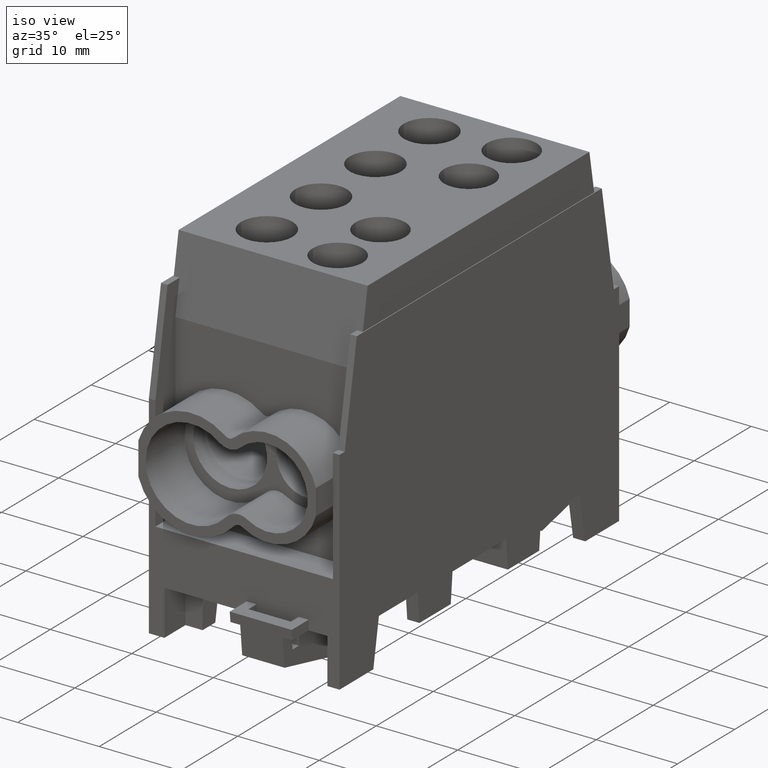
[diagram: clean part render]
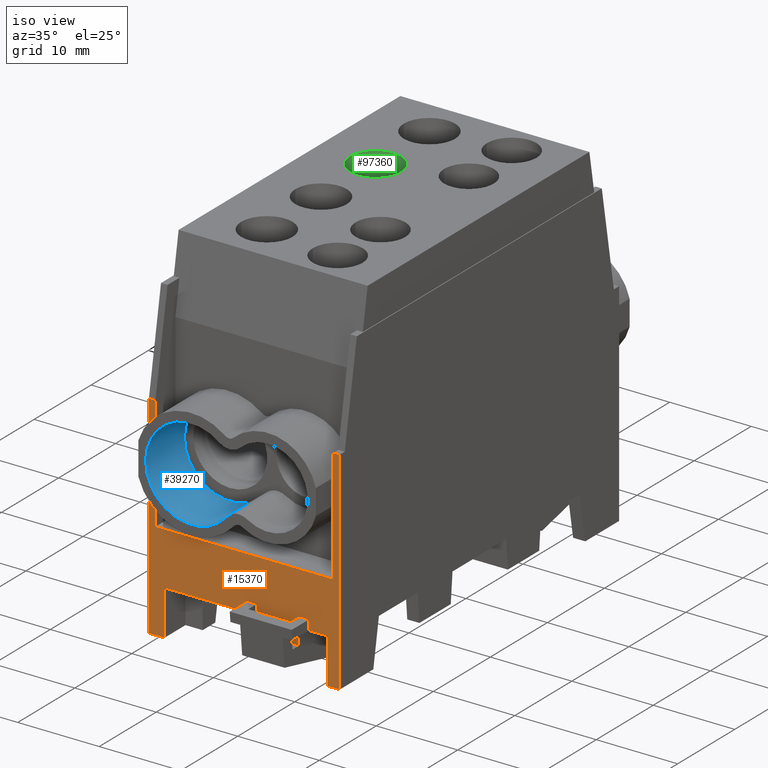
[diagram: same view with three faces highlighted in distinct colors, each labeled with its STEP entity id]
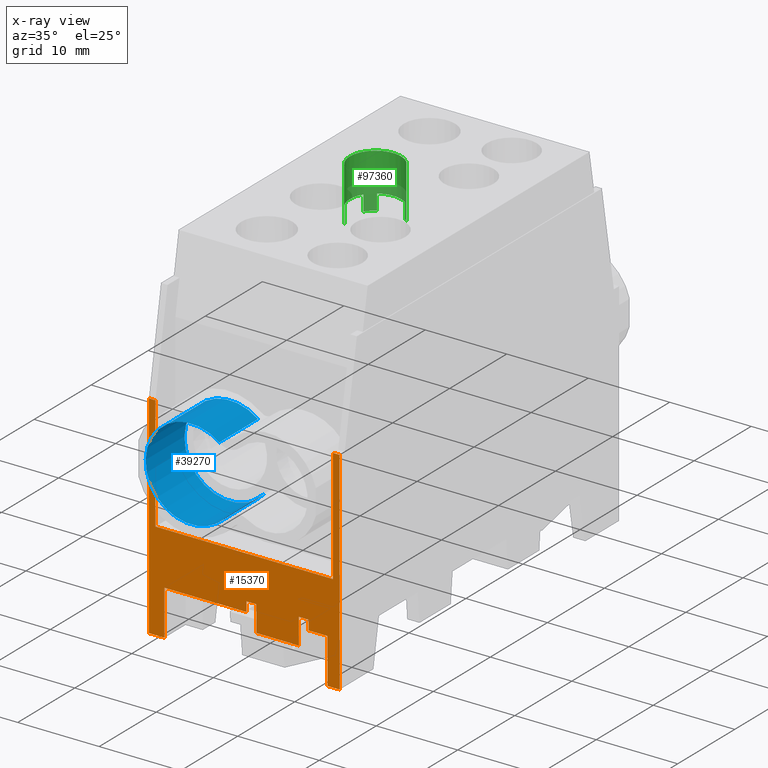
[diagram: x-ray of the same camera — body ghosted, the three highlighted faces saturated]
A machine part, iso view with three faces highlighted in distinct colors.
The next image is the same camera in x-ray (body ghosted, the three faces saturated) — at least one of them is partly hidden behind the body in this view.
Their STEP definitions:

[orange] entity #15370 — the highlighted planar face has unit normal (0, 1, 0).
#100=CARTESIAN_POINT('',(-11.7,-24.5,12.5000000000001));
#110=VERTEX_POINT('',#100);
#160=CARTESIAN_POINT('',(-11.7,-24.5,0.));
#170=DIRECTION('',(0.,0.,-1.));
#180=VECTOR('',#170,1.);
#190=LINE('',#160,#180);
#200=CARTESIAN_POINT('',(-11.7,-24.5,-13.5484906061591));
#210=VERTEX_POINT('',#200);
#220=EDGE_CURVE('',#110,#210,#190,.T.);
#4150=CARTESIAN_POINT('',(-10.9,-24.5,12.5000000000001));
#4160=VERTEX_POINT('',#4150);
#4190=CARTESIAN_POINT('',(3.5527136788005E-15,-24.5,12.5000000000001));
#4200=DIRECTION('',(-1.,0.,0.));
#4210=VECTOR('',#4200,1.);
#4220=LINE('',#4190,#4210);
#4230=EDGE_CURVE('',#4160,#110,#4220,.T.);
#4560=CARTESIAN_POINT('',(0.300000000000004,-24.5,-6.8));
#4570=VERTEX_POINT('',#4560);
#4600=CARTESIAN_POINT('',(0.,-24.5,-6.8));
#4610=DIRECTION('',(1.,0.,0.));
#4620=VECTOR('',#4610,1.);
#4630=LINE('',#4600,#4620);
#4640=CARTESIAN_POINT('',(1.50000000000001,-24.5,-6.8));
#4650=VERTEX_POINT('',#4640);
#4660=EDGE_CURVE('',#4570,#4650,#4630,.T.);
#4880=CARTESIAN_POINT('',(6.70000000000001,-24.5,-6.8));
#4890=VERTEX_POINT('',#4880);
#4920=CARTESIAN_POINT('',(7.9,-24.5,-6.8));
#4930=VERTEX_POINT('',#4920);
#4940=EDGE_CURVE('',#4890,#4930,#4630,.T.);
#5700=CARTESIAN_POINT('',(10.9,-24.5,6.65080666151701));
#5710=VERTEX_POINT('',#5700);
#5860=CARTESIAN_POINT('',(10.9,-24.5,9.74919333848297));
#5870=VERTEX_POINT('',#5860);
#5900=CARTESIAN_POINT('',(10.9,-24.5,0.));
#5910=DIRECTION('',(0.,0.,-1.));
#5920=VECTOR('',#5910,1.);
#5930=LINE('',#5900,#5920);
#5940=EDGE_CURVE('',#5870,#5710,#5930,.T.);
#10330=CARTESIAN_POINT('',(-10.9,-24.5,9.19749843554379));
#10340=VERTEX_POINT('',#10330);
#10420=CARTESIAN_POINT('',(-10.9,-24.5,5.20250156445618));
#10430=VERTEX_POINT('',#10420);
#10460=CARTESIAN_POINT('',(-10.9,-24.5,0.));
#10470=DIRECTION('',(0.,0.,1.));
#10480=VECTOR('',#10470,1.);
#10490=LINE('',#10460,#10480);
#10500=EDGE_CURVE('',#10430,#10340,#10490,.T.);
#13440=CARTESIAN_POINT('',(-9.8,-24.5,-13.5484906061591));
#13450=VERTEX_POINT('',#13440);
#13730=CARTESIAN_POINT('',(-11.4,-24.5,-13.5484906061591));
#13740=DIRECTION('',(1.,0.,0.));
#13750=VECTOR('',#13740,1.);
#13760=LINE('',#13730,#13750);
#13770=EDGE_CURVE('',#210,#13450,#13760,.T.);
#13890=CARTESIAN_POINT('',(11.7,-24.5,0.));
#13900=DIRECTION('',(0.,1.,0.));
#13910=DIRECTION('',(0.,0.,1.));
#13920=AXIS2_PLACEMENT_3D('',#13890,#13900,#13910);
#13930=PLANE('',#13920);
#13940=CARTESIAN_POINT('',(0.300000000000004,-24.5,0.));
#13950=DIRECTION('',(0.,0.,-1.));
#13960=VECTOR('',#13950,1.);
#13970=LINE('',#13940,#13960);
#13980=CARTESIAN_POINT('',(0.300000000000004,-24.5,-8.));
#13990=VERTEX_POINT('',#13980);
#14000=EDGE_CURVE('',#4570,#13990,#13970,.T.);
#14010=ORIENTED_EDGE('',*,*,#14000,.F.);
#14020=CARTESIAN_POINT('',(3.5527136788005E-15,-24.5,-8.));
#14030=DIRECTION('',(-1.,0.,0.));
#14040=VECTOR('',#14030,1.);
#14050=LINE('',#14020,#14040);
#14060=CARTESIAN_POINT('',(-9.8,-24.5,-8.));
#14070=VERTEX_POINT('',#14060);
#14080=EDGE_CURVE('',#13990,#14070,#14050,.T.);
#14090=ORIENTED_EDGE('',*,*,#14080,.F.);
#14100=CARTESIAN_POINT('',(-9.8,-24.5,-13.5484906061591));
#14110=DIRECTION('',(0.,0.,1.));
#14120=VECTOR('',#14110,1.);
#14130=LINE('',#14100,#14120);
#14140=EDGE_CURVE('',#13450,#14070,#14130,.T.);
#14150=ORIENTED_EDGE('',*,*,#14140,.T.);
#14160=ORIENTED_EDGE('',*,*,#13770,.T.);
#14170=ORIENTED_EDGE('',*,*,#220,.T.);
#14180=ORIENTED_EDGE('',*,*,#4230,.T.);
#14190=CARTESIAN_POINT('',(-10.9,-24.5,0.));
#14200=DIRECTION('',(0.,0.,1.));
#14210=VECTOR('',#14200,1.);
#14220=LINE('',#14190,#14210);
#14230=EDGE_CURVE('',#10340,#4160,#14220,.T.);
#14240=ORIENTED_EDGE('',*,*,#14230,.T.);
#14250=ORIENTED_EDGE('',*,*,#10500,.T.);
#14260=CARTESIAN_POINT('',(-10.9,-24.5,-1.5));
#14270=VERTEX_POINT('',#14260);
#14280=EDGE_CURVE('',#14270,#10430,#14220,.T.);
#14290=ORIENTED_EDGE('',*,*,#14280,.T.);
#14300=CARTESIAN_POINT('',(3.5527136788005E-15,-24.5,-1.5));
#14310=DIRECTION('',(-1.,0.,0.));
#14320=VECTOR('',#14310,1.);
#14330=LINE('',#14300,#14320);
#14340=CARTESIAN_POINT('',(10.9,-24.5,-1.5));
#14350=VERTEX_POINT('',#14340);
#14360=EDGE_CURVE('',#14350,#14270,#14330,.T.);
#14370=ORIENTED_EDGE('',*,*,#14360,.T.);
#14380=CARTESIAN_POINT('',(10.9,-24.5,0.));
#14390=DIRECTION('',(0.,0.,-1.));
#14400=VECTOR('',#14390,1.);
#14410=LINE('',#14380,#14400);
#14420=EDGE_CURVE('',#5710,#14350,#14410,.T.);
#14430=ORIENTED_EDGE('',*,*,#14420,.T.);
#14440=ORIENTED_EDGE('',*,*,#5940,.T.);
#14450=CARTESIAN_POINT('',(10.9,-24.5,12.5));
#14460=VERTEX_POINT('',#14450);
#14470=EDGE_CURVE('',#14460,#5870,#14410,.T.);
#14480=ORIENTED_EDGE('',*,*,#14470,.T.);
#14490=CARTESIAN_POINT('',(3.5527136788005E-15,-24.5,12.5));
#14500=DIRECTION('',(-1.,0.,0.));
#14510=VECTOR('',#14500,1.);
#14520=LINE('',#14490,#14510);
#14530=CARTESIAN_POINT('',(11.7,-24.5,12.5));
#14540=VERTEX_POINT('',#14530);
#14550=EDGE_CURVE('',#14540,#14460,#14520,.T.);
#14560=ORIENTED_EDGE('',*,*,#14550,.T.);
#14570=CARTESIAN_POINT('',(11.7,-24.5,0.));
#14580=DIRECTION('',(0.,0.,1.));
#14590=VECTOR('',#14580,1.);
#14600=LINE('',#14570,#14590);
#14610=CARTESIAN_POINT('',(11.7,-24.5,-13.5484906061591));
#14620=VERTEX_POINT('',#14610);
#14630=EDGE_CURVE('',#14620,#14540,#14600,.T.);
#14640=ORIENTED_EDGE('',*,*,#14630,.T.);
#14650=CARTESIAN_POINT('',(11.4,-24.5,-13.5484906061591));
#14660=DIRECTION('',(-1.,0.,0.));
#14670=VECTOR('',#14660,1.);
#14680=LINE('',#14650,#14670);
#14690=CARTESIAN_POINT('',(10.2,-24.5,-13.5484906061591));
#14700=VERTEX_POINT('',#14690);
#14710=EDGE_CURVE('',#14620,#14700,#14680,.T.);
#14720=ORIENTED_EDGE('',*,*,#14710,.F.);
#14730=CARTESIAN_POINT('',(10.2,-24.5,-8.));
#14740=DIRECTION('',(0.,0.,-1.));
#14750=VECTOR('',#14740,1.);
#14760=LINE('',#14730,#14750);
#14770=CARTESIAN_POINT('',(10.2,-24.5,-8.));
#14780=VERTEX_POINT('',#14770);
#14790=EDGE_CURVE('',#14780,#14700,#14760,.T.);
#14800=ORIENTED_EDGE('',*,*,#14790,.T.);
#14810=CARTESIAN_POINT('',(3.5527136788005E-15,-24.5,-8.));
#14820=DIRECTION('',(-1.,0.,0.));
#14830=VECTOR('',#14820,1.);
#14840=LINE('',#14810,#14830);
#14850=CARTESIAN_POINT('',(7.9,-24.5,-8.));
#14860=VERTEX_POINT('',#14850);
#14870=EDGE_CURVE('',#14780,#14860,#14840,.T.);
#14880=ORIENTED_EDGE('',*,*,#14870,.F.);
#14890=CARTESIAN_POINT('',(7.9,-24.5,0.));
#14900=DIRECTION('',(0.,0.,1.));
#14910=VECTOR('',#14900,1.);
#14920=LINE('',#14890,#14910);
#14930=EDGE_CURVE('',#14860,#4930,#14920,.T.);
#14940=ORIENTED_EDGE('',*,*,#14930,.F.);
#14950=ORIENTED_EDGE('',*,*,#4940,.T.);
#14960=CARTESIAN_POINT('',(6.70000000000001,-24.5,0.));
#14970=DIRECTION('',(1.3740383968133E-18,0.,1.));
#14980=VECTOR('',#14970,1.);
#14990=LINE('',#14960,#14980);
#15000=CARTESIAN_POINT('',(6.70000000000001,-24.5,-8.));
#15010=VERTEX_POINT('',#15000);
#15020=EDGE_CURVE('',#15010,#4890,#14990,.T.);
#15030=ORIENTED_EDGE('',*,*,#15020,.T.);
#15040=CARTESIAN_POINT('',(6.7,-24.5,0.));
#15050=DIRECTION('',(0.,0.,1.));
#15060=VECTOR('',#15050,1.);
#15070=LINE('',#15040,#15060);
#15080=CARTESIAN_POINT('',(6.7,-24.5,-9.99999999999996));
#15090=VERTEX_POINT('',#15080);
#15100=EDGE_CURVE('',#15090,#15010,#15070,.T.);
#15110=ORIENTED_EDGE('',*,*,#15100,.T.);
#15120=CARTESIAN_POINT('',(0.,-24.5,-9.99999999999996));
#15130=DIRECTION('',(-1.,0.,0.));
#15140=VECTOR('',#15130,1.);
#15150=LINE('',#15120,#15140);
#15160=CARTESIAN_POINT('',(1.5,-24.5,-9.99999999999996));
#15170=VERTEX_POINT('',#15160);
#15180=EDGE_CURVE('',#15090,#15170,#15150,.T.);
#15190=ORIENTED_EDGE('',*,*,#15180,.F.);
#15200=CARTESIAN_POINT('',(1.50000000000001,-24.5,0.));
#15210=DIRECTION('',(-1.22108605138914E-16,0.,-1.));
#15220=VECTOR('',#15210,1.);
#15230=LINE('',#15200,#15220);
#15240=CARTESIAN_POINT('',(1.5,-24.5,-8.));
#15250=VERTEX_POINT('',#15240);
#15260=EDGE_CURVE('',#15250,#15170,#15230,.T.);
#15270=ORIENTED_EDGE('',*,*,#15260,.T.);
#15280=CARTESIAN_POINT('',(1.50000000000001,-24.5,0.));
#15290=DIRECTION('',(-1.3740383968133E-18,0.,-1.));
#15300=VECTOR('',#15290,1.);
#15310=LINE('',#15280,#15300);
#15320=EDGE_CURVE('',#4650,#15250,#15310,.T.);
#15330=ORIENTED_EDGE('',*,*,#15320,.T.);
#15340=ORIENTED_EDGE('',*,*,#4660,.T.);
#15350=EDGE_LOOP('',(#15340,#15330,#15270,#15190,#15110,#15030,#14950,
#14940,#14880,#14800,#14720,#14640,#14560,#14480,#14440,#14430,#14370,
#14290,#14250,#14240,#14180,#14170,#14160,#14150,#14090,#14010));
#15360=FACE_OUTER_BOUND('',#15350,.T.);
#15370=ADVANCED_FACE('',(#15360),#13930,.F.);

[blue] entity #39270 — the highlighted cylindrical surface (partial cylindrical patch) has radius 5.6 mm, axis along (0, -1, 0).
#6270=CARTESIAN_POINT('',(-0.970818099014571,-27.5,11.627269078106));
#6280=VERTEX_POINT('',#6270);
#6310=CARTESIAN_POINT('',(-4.39999999999999,-27.5,7.19999999999999));
#6320=DIRECTION('',(0.,-1.,0.));
#6330=DIRECTION('',(0.,0.,-1.));
#6340=AXIS2_PLACEMENT_3D('',#6310,#6320,#6330);
#6350=CIRCLE('',#6340,5.6);
#6360=CARTESIAN_POINT('',(-0.116137091109264,-27.5,3.5932676037956));
#6370=VERTEX_POINT('',#6360);
#6380=EDGE_CURVE('',#6280,#6370,#6350,.T.);
#38960=CARTESIAN_POINT('',(-4.39999999999999,-27.5,7.19999999999999));
#38970=DIRECTION('',(0.,-1.,0.));
#38980=DIRECTION('',(0.,0.,-1.));
#38990=AXIS2_PLACEMENT_3D('',#38960,#38970,#38980);
#39000=CYLINDRICAL_SURFACE('',#38990,5.6);
#39010=ORIENTED_EDGE('',*,*,#6380,.T.);
#39020=CARTESIAN_POINT('',(-0.970818099014569,-19.5,11.627269078106));
#39030=DIRECTION('',(1.22108605138914E-16,-1.,1.77619756370172E-16));
#39040=VECTOR('',#39030,1.);
#39050=LINE('',#39020,#39040);
#39060=CARTESIAN_POINT('',(-0.970818099014634,-20.7,11.6272690781061));
#39070=VERTEX_POINT('',#39060);
#39080=EDGE_CURVE('',#39070,#6280,#39050,.T.);
#39090=ORIENTED_EDGE('',*,*,#39080,.T.);
#39100=CARTESIAN_POINT('',(-4.39999999999999,-20.7,7.19999999999999));
#39110=DIRECTION('',(-3.45117804456804E-32,1.,-2.46519032881566E-32));
#39120=DIRECTION('',(0.,0.,1.));
#39130=AXIS2_PLACEMENT_3D('',#39100,#39110,#39120);
#39140=CIRCLE('',#39130,5.6);
#39150=CARTESIAN_POINT('',(-0.116137091109261,-20.7,3.5932676037956));
#39160=VERTEX_POINT('',#39150);
#39170=EDGE_CURVE('',#39160,#39070,#39140,.T.);
#39180=ORIENTED_EDGE('',*,*,#39170,.T.);
#39190=CARTESIAN_POINT('',(-0.116137091109264,-19.5,3.5932676037956));
#39200=DIRECTION('',(1.22108605138914E-16,-1.,1.77619756370172E-16));
#39210=VECTOR('',#39200,1.);
#39220=LINE('',#39190,#39210);
#39230=EDGE_CURVE('',#39160,#6370,#39220,.T.);
#39240=ORIENTED_EDGE('',*,*,#39230,.F.);
#39250=EDGE_LOOP('',(#39240,#39180,#39090,#39010));
#39260=FACE_OUTER_BOUND('',#39250,.T.);
#39270=ADVANCED_FACE('',(#39260),#39000,.F.);

[green] entity #97360 — the highlighted cylindrical surface (edge-blend (fillet) strip) has radius 3.15 mm, axis along (-0, -0, 1).
#8660=CARTESIAN_POINT('',(-7.04445424428768,6.43591922886703,22.65));
#8670=DIRECTION('',(-5.55111512312579E-17,-1.77619756370172E-16,1.));
#8680=VECTOR('',#8670,1.);
#8690=LINE('',#8660,#8680);
#8700=CARTESIAN_POINT('',(-7.04445424428768,6.43591922886703,22.65));
#8710=VERTEX_POINT('',#8700);
#8720=CARTESIAN_POINT('',(-7.04445424428768,6.43591922886703,24.55));
#8730=VERTEX_POINT('',#8720);
#8740=EDGE_CURVE('',#8710,#8730,#8690,.T.);
#51060=CARTESIAN_POINT('',(-4.37778660940869,4.75920108764921,29.3));
#51070=DIRECTION('',(-5.55111512312579E-17,-1.77619756370172E-16,1.));
#51080=DIRECTION('',(0.707106781186548,0.707106781186547,
1.64848445669146E-16));
#51090=AXIS2_PLACEMENT_3D('',#51060,#51070,#51080);
#51100=CIRCLE('',#51090,3.15);
#51110=CARTESIAN_POINT('',(-7.52685700249765,4.68267880742605,29.3));
#51120=VERTEX_POINT('',#51110);
#51130=CARTESIAN_POINT('',(-6.60517297014632,2.53181472691159,29.3));
#51140=VERTEX_POINT('',#51130);
#51150=EDGE_CURVE('',#51120,#51140,#51100,.T.);
#51170=CARTESIAN_POINT('',(-2.15040024867107,6.98658744838684,29.3));
#51180=VERTEX_POINT('',#51170);
#51210=EDGE_CURVE('',#51180,#51120,#51100,.T.);
#58650=CARTESIAN_POINT('',(-4.37778660940869,4.75920108764921,24.55));
#58660=DIRECTION('',(-5.55111512312579E-17,-1.77619756370172E-16,1.));
#58670=DIRECTION('',(0.707106781186548,0.707106781186547,
1.64848445669146E-16));
#58680=AXIS2_PLACEMENT_3D('',#58650,#58660,#58670);
#58690=CIRCLE('',#58680,3.15);
#66200=CARTESIAN_POINT('',(-6.95986655900744,2.9549385973557,22.65));
#66210=VERTEX_POINT('',#66200);
#66250=CARTESIAN_POINT('',(-4.37778660940869,4.75920108764921,22.65));
#66260=DIRECTION('',(-5.55111512312579E-17,-1.77619756370172E-16,1.));
#66270=DIRECTION('',(0.707106781186548,0.707106781186547,
1.64848445669146E-16));
#66280=AXIS2_PLACEMENT_3D('',#66250,#66260,#66270);
#66290=CIRCLE('',#66280,3.15);
#66300=CARTESIAN_POINT('',(-6.05450475062651,7.4258687225282,22.65));
#66310=VERTEX_POINT('',#66300);
#66320=EDGE_CURVE('',#66310,#8710,#66290,.T.);
#66460=CARTESIAN_POINT('',(-2.57352411911516,7.34128103724794,22.65));
#66470=VERTEX_POINT('',#66460);
#66500=CARTESIAN_POINT('',(-4.37778660940869,4.75920108764921,22.65));
#66510=DIRECTION('',(-5.55111512312579E-17,-1.77619756370172E-16,1.));
#66520=DIRECTION('',(0.707106781186548,0.707106781186547,
1.64848445669146E-16));
#66530=AXIS2_PLACEMENT_3D('',#66500,#66510,#66520);
#66540=CIRCLE('',#66530,3.15);
#66550=CARTESIAN_POINT('',(-2.15040024867107,6.98658744838684,22.65));
#66560=VERTEX_POINT('',#66550);
#66570=EDGE_CURVE('',#66560,#66470,#66540,.T.);
#67040=CARTESIAN_POINT('',(-4.37778660940869,4.75920108764921,22.65));
#67050=DIRECTION('',(5.55111512312579E-17,1.77619756370172E-16,-1.));
#67060=DIRECTION('',(0.707106781186548,0.707106781186547,
1.64848445669146E-16));
#67070=AXIS2_PLACEMENT_3D('',#67040,#67050,#67060);
#67080=CIRCLE('',#67070,3.15);
#67090=CARTESIAN_POINT('',(-6.60517297014632,2.53181472691159,22.65));
#67100=VERTEX_POINT('',#67090);
#67130=EDGE_CURVE('',#67100,#66210,#67080,.T.);
#75400=CARTESIAN_POINT('',(-6.05450475062651,7.4258687225282,22.65));
#75410=DIRECTION('',(-5.55111512312579E-17,-1.77619756370172E-16,1.));
#75420=VECTOR('',#75410,1.);
#75430=LINE('',#75400,#75420);
#75440=CARTESIAN_POINT('',(-6.05524112756322,7.42540556959035,24.55));
#75450=VERTEX_POINT('',#75440);
#75460=EDGE_CURVE('',#66310,#75450,#75430,.T.);
#85620=CARTESIAN_POINT('',(-6.95986655900744,2.9549385973557,24.55));
#85630=VERTEX_POINT('',#85620);
#85680=CARTESIAN_POINT('',(-6.95986655900744,2.9549385973557,22.65));
#85690=DIRECTION('',(-5.55111512312579E-17,-1.77619756370172E-16,1.));
#85700=VECTOR('',#85690,1.);
#85710=LINE('',#85680,#85700);
#85720=EDGE_CURVE('',#66210,#85630,#85710,.T.);
#86420=CARTESIAN_POINT('',(-2.57352411911516,7.34128103724794,22.65));
#86430=DIRECTION('',(-5.55111512312579E-17,-1.77619756370172E-16,1.));
#86440=VECTOR('',#86430,1.);
#86450=LINE('',#86420,#86440);
#86460=CARTESIAN_POINT('',(-2.57352411911516,7.34128103724794,24.55));
#86470=VERTEX_POINT('',#86460);
#86480=EDGE_CURVE('',#66470,#86470,#86450,.T.);
#90260=EDGE_CURVE('',#8730,#85630,#58690,.T.);
#92670=CARTESIAN_POINT('',(-2.15040024867107,6.98658744838684,22.65));
#92680=DIRECTION('',(-5.55111512312579E-17,-1.77619756370172E-16,1.));
#92690=VECTOR('',#92680,1.);
#92700=LINE('',#92670,#92690);
#92710=EDGE_CURVE('',#66560,#51180,#92700,.T.);
#92740=CARTESIAN_POINT('',(-6.60517297014632,2.53181472691159,22.65));
#92750=DIRECTION('',(-5.55111512312579E-17,-1.77619756370172E-16,1.));
#92760=VECTOR('',#92750,1.);
#92770=LINE('',#92740,#92760);
#92780=EDGE_CURVE('',#67100,#51140,#92770,.T.);
#92930=EDGE_CURVE('',#86470,#75450,#58690,.T.);
#97160=CARTESIAN_POINT('',(-4.37778660940869,4.75920108764921,22.65));
#97170=DIRECTION('',(-5.55111512312579E-17,-1.77619756370172E-16,1.));
#97180=DIRECTION('',(0.707106781186548,0.707106781186547,
1.64848445669146E-16));
#97190=AXIS2_PLACEMENT_3D('',#97160,#97170,#97180);
#97200=CYLINDRICAL_SURFACE('',#97190,3.15);
#97210=ORIENTED_EDGE('',*,*,#92710,.T.);
#97220=ORIENTED_EDGE('',*,*,#66570,.F.);
#97230=ORIENTED_EDGE('',*,*,#86480,.F.);
#97240=ORIENTED_EDGE('',*,*,#92930,.F.);
#97250=ORIENTED_EDGE('',*,*,#75460,.T.);
#97260=ORIENTED_EDGE('',*,*,#66320,.F.);
#97270=ORIENTED_EDGE('',*,*,#8740,.F.);
#97280=ORIENTED_EDGE('',*,*,#90260,.F.);
#97290=ORIENTED_EDGE('',*,*,#85720,.T.);
#97300=ORIENTED_EDGE('',*,*,#67130,.T.);
#97310=ORIENTED_EDGE('',*,*,#92780,.F.);
#97320=ORIENTED_EDGE('',*,*,#51150,.T.);
#97330=ORIENTED_EDGE('',*,*,#51210,.T.);
#97340=EDGE_LOOP('',(#97330,#97320,#97310,#97300,#97290,#97280,#97270,
#97260,#97250,#97240,#97230,#97220,#97210));
#97350=FACE_OUTER_BOUND('',#97340,.T.);
#97360=ADVANCED_FACE('',(#97350),#97200,.F.);